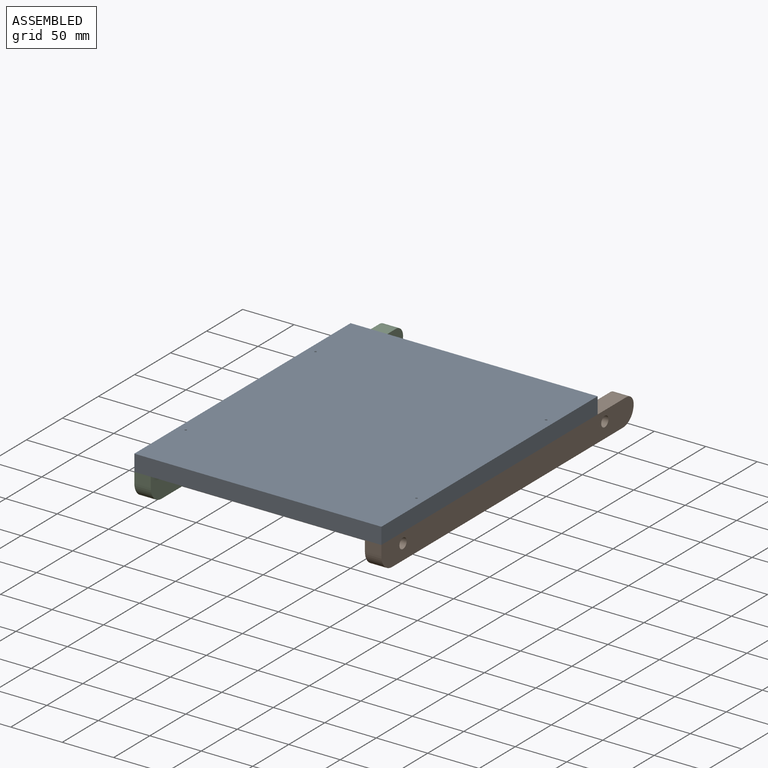
[diagram: assembled view]
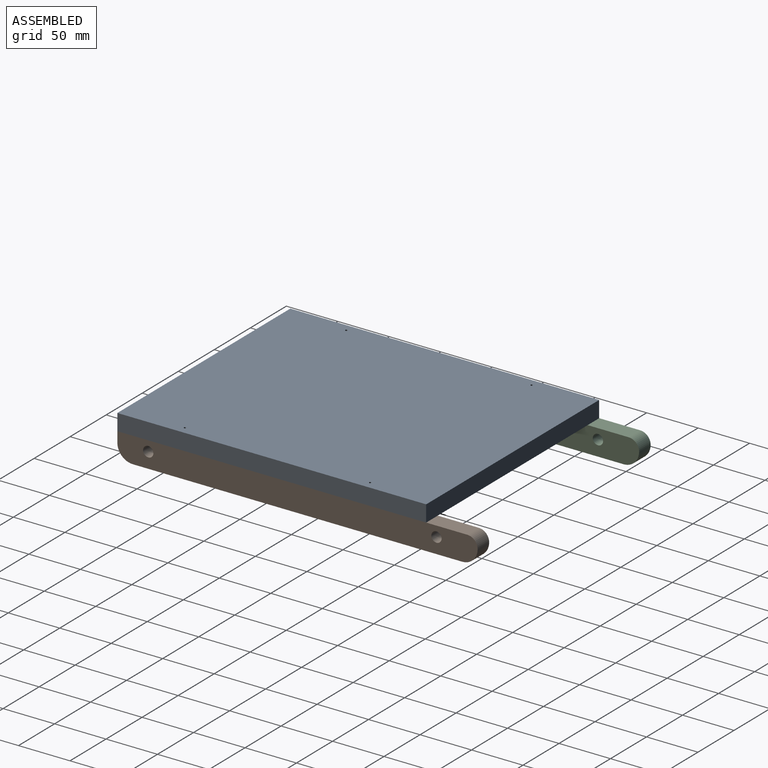
[diagram: assembled view, second angle]
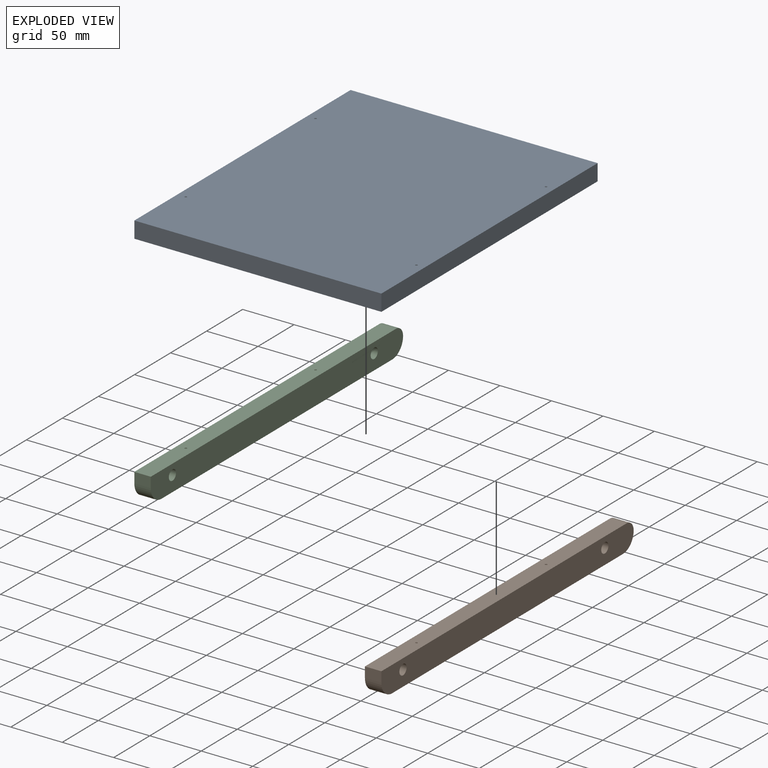
[diagram: exploded view]
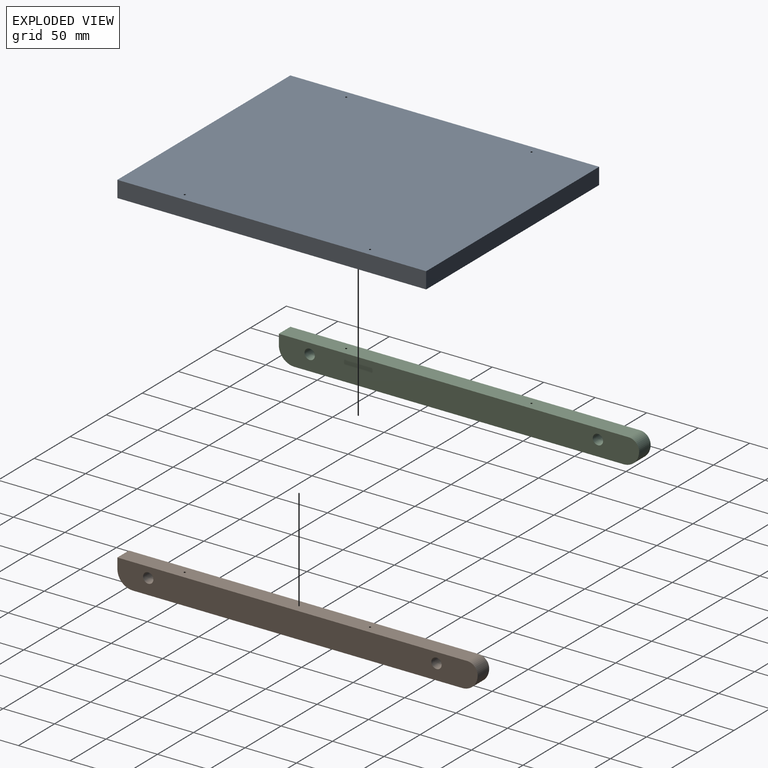
[diagram: exploded view, second angle]
ASSEMBLY  parts=3 mates=2
PART A: 10 faces, bbox 240x300x16 mm
  f0: plane 300x16mm, normal (1,0,0), area 4800mm2, adj f1,f3,f8,f9
  f1: plane 240x16mm, normal (0,1,0), area 3840mm2, adj f0,f2,f8,f9
  f2: plane 300x16mm, normal (-1,0,0), area 4800mm2, adj f1,f3,f8,f9
  f3: plane 240x16mm, normal (0,-1,0), area 3840mm2, adj f0,f2,f8,f9
  f4: cylinder r=1mm len=16mm, axis (0,0,-1), area 100.5mm2, adj f8,f9
  f5: cylinder r=1mm len=16mm, axis (0,0,-1), area 100.5mm2, adj f8,f9
  f6: cylinder r=1mm len=16mm, axis (0,0,-1), area 100.5mm2, adj f8,f9
  f7: cylinder r=1mm len=16mm, axis (0,0,-1), area 100.5mm2, adj f8,f9
  f8: plane 300x240mm, normal (0,0,1), area 71987.4mm2, adj f0,f1,f2,f3,f4,f5,f6,f7
  f9: plane 300x240mm, normal (0,0,-1), area 71987.4mm2, adj f0,f1,f2,f3,f4,f5,f6,f7
PART B: 12 faces, bbox 16x350x25 mm
  f0: plane 320x16mm, normal (0,0,-1), area 5113.7mm2, adj f1,f7,f8,f9,f10,f11
  f1: cylinder r=15mm len=16mm, axis (-1,0,0), area 377mm2, adj f0,f2,f8,f9
  f2: cylinder r=10mm len=16mm, axis (-1,0,0), area 251.3mm2, adj f1,f3,f8,f9
  f3: plane 340x16mm, normal (0,0,1), area 5433.7mm2, adj f2,f4,f8,f9,f10,f11
  f4: plane 16x10mm, normal (0,-1,0), area 160mm2, adj f3,f7,f8,f9
  f5: cylinder r=5mm len=16mm, axis (-1,0,0), area 502.7mm2, adj f8,f9
  f6: cylinder r=5mm len=16mm, axis (-1,0,0), area 502.7mm2, adj f8,f9
  f7: cylinder r=15mm len=16mm, axis (-1,0,0), area 377mm2, adj f0,f4,f8,f9
  f8: plane 350x25mm, normal (1,0,0), area 8474.9mm2, adj f0,f1,f2,f3,f4,f5,f6,f7
  f9: plane 350x25mm, normal (-1,0,0), area 8474.9mm2, adj f0,f1,f2,f3,f4,f5,f6,f7
  f10: cylinder r=1mm len=25mm, axis (0,0,1), area 157.1mm2, adj f0,f3
  f11: cylinder r=1mm len=25mm, axis (0,0,1), area 157.1mm2, adj f0,f3
PART C: same geometry as B
PLACE A at identity
PLACE B t=(112,25,0)mm
PLACE C t=(-112,25,0)mm
MATE fastened C.f10 <-> A.f5  axis (0,0,1) through (-112,-90,0)mm
MATE fastened B.f10 <-> A.f6  axis (0,0,1) through (112,-90,0)mm
